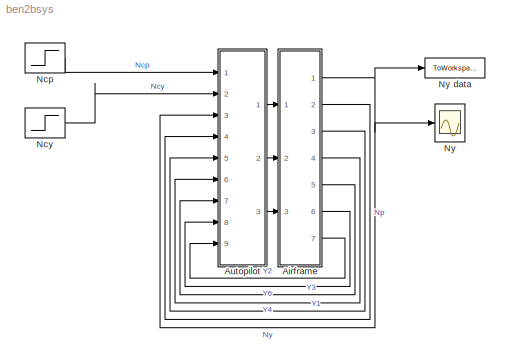
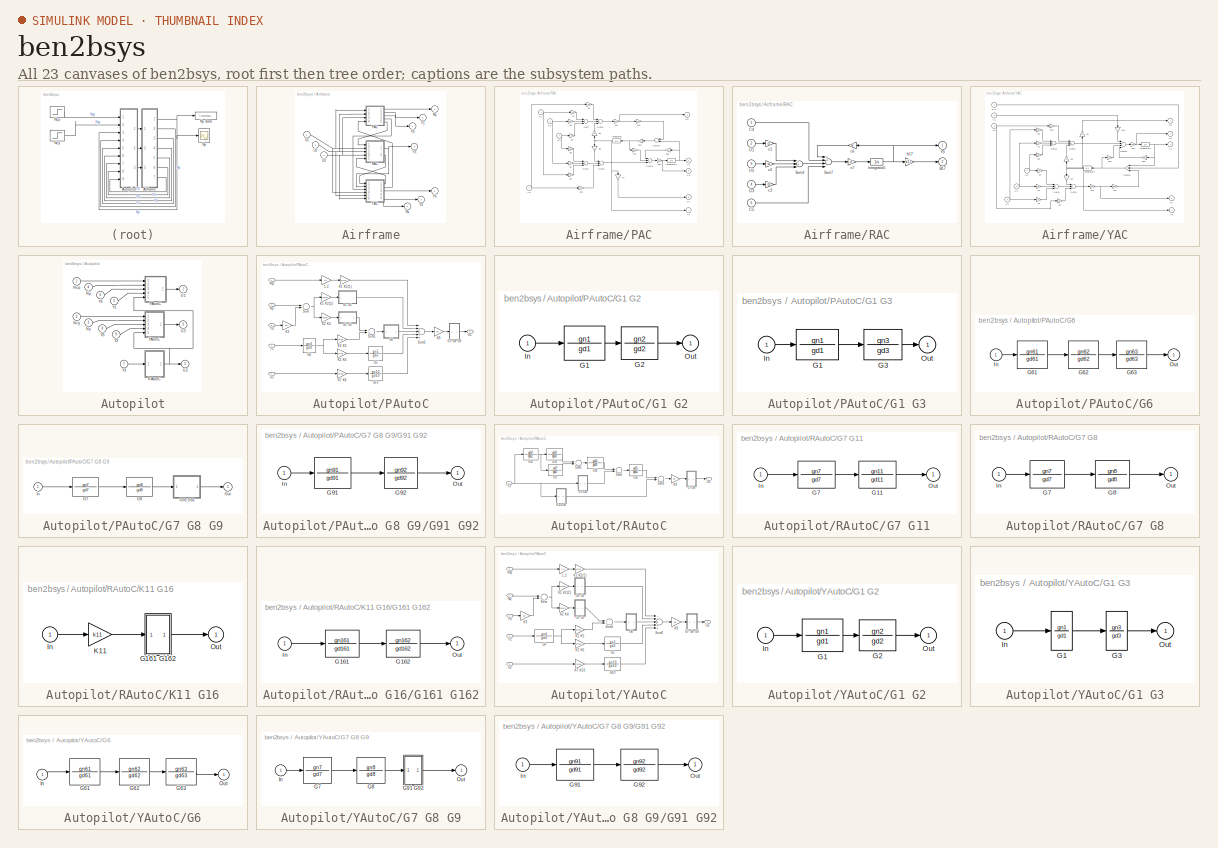
[diagram: thumbnail index - all 23 canvases of the model, root first then tree order]
MODEL ben2bsys
KIND model
CONFIG PreLoadFcn = ben2bdat
BLOCK [SubSystem] Airframe
  MinAlgLoopOccurrences = off
  Ports = [3, 7]
  PropExecContextAcrossSSBoundary = on
  RTWSystemCode = Auto
  TreatAsAtomicUnit = off
BLOCK [Outport] Airframe/Np
  IconDisplay = Port number
  InitialOutput = 0
  Port = 2
BLOCK [Outport] Airframe/Ny
  IconDisplay = Port number
  InitialOutput = 0
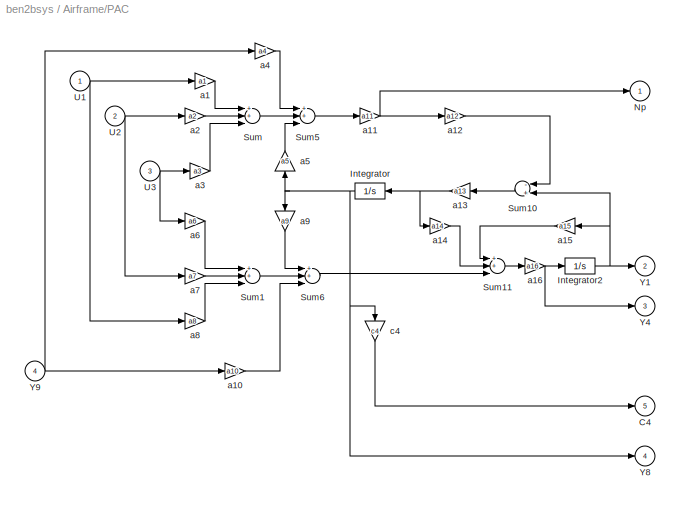
BLOCK [SubSystem] Airframe/PAC
  MinAlgLoopOccurrences = off
  Ports = [4, 5]
  PropExecContextAcrossSSBoundary = on
  RTWSystemCode = Auto
  TreatAsAtomicUnit = off
BLOCK [Outport] Airframe/PAC/C4
  IconDisplay = Port number
  InitialOutput = 0
  Port = 5
BLOCK [Integrator] Airframe/PAC/Integrator
  Ports = [1, 1]
BLOCK [Integrator] Airframe/PAC/Integrator2
  Ports = [1, 1]
BLOCK [Outport] Airframe/PAC/Np
  IconDisplay = Port number
  InitialOutput = 0
BLOCK [Sum] Airframe/PAC/Sum
  Inputs = 3
  Ports = [3, 1]
BLOCK [Sum] Airframe/PAC/Sum1
  Inputs = 3
  Ports = [3, 1]
BLOCK [Sum] Airframe/PAC/Sum10
  Inputs = -+
  Ports = [2, 1]
BLOCK [Sum] Airframe/PAC/Sum11
  Inputs = 3
  Ports = [3, 1]
BLOCK [Sum] Airframe/PAC/Sum5
  Inputs = 3
  Ports = [3, 1]
BLOCK [Sum] Airframe/PAC/Sum6
  Inputs = 3
  Ports = [3, 1]
BLOCK [Inport] Airframe/PAC/U1
  IconDisplay = Port number
  LatchInput = off
  Port = 1
BLOCK [Inport] Airframe/PAC/U2
  IconDisplay = Port number
  LatchInput = off
  Port = 2
BLOCK [Inport] Airframe/PAC/U3
  IconDisplay = Port number
  LatchInput = off
  Port = 3
BLOCK [Outport] Airframe/PAC/Y1
  IconDisplay = Port number
  InitialOutput = 0
  Port = 2
BLOCK [Outport] Airframe/PAC/Y4
  IconDisplay = Port number
  InitialOutput = 0
  Port = 3
BLOCK [Outport] Airframe/PAC/Y8
  IconDisplay = Port number
  InitialOutput = 0
  Port = 4
BLOCK [Inport] Airframe/PAC/Y9
  IconDisplay = Port number
  LatchInput = off
  Port = 4
BLOCK [Gain] Airframe/PAC/a1
  Gain = a1
BLOCK [Gain] Airframe/PAC/a10
  Gain = a10
BLOCK [Gain] Airframe/PAC/a11
  Gain = a11
BLOCK [Gain] Airframe/PAC/a12
  Gain = a12
BLOCK [Gain] Airframe/PAC/a13
  Gain = a13
BLOCK [Gain] Airframe/PAC/a14
  Gain = a14
BLOCK [Gain] Airframe/PAC/a15
  Gain = a15
BLOCK [Gain] Airframe/PAC/a16
  Gain = a16
BLOCK [Gain] Airframe/PAC/a2
  Gain = a2
BLOCK [Gain] Airframe/PAC/a3
  Gain = a3
BLOCK [Gain] Airframe/PAC/a4
  Gain = a4
BLOCK [Gain] Airframe/PAC/a5
  Gain = a5
BLOCK [Gain] Airframe/PAC/a6
  Gain = a6
BLOCK [Gain] Airframe/PAC/a7
  Gain = a7
BLOCK [Gain] Airframe/PAC/a8
  Gain = a8
BLOCK [Gain] Airframe/PAC/a9
  Gain = a9
BLOCK [Gain] Airframe/PAC/c4
  Gain = c4
BLOCK [SubSystem] Airframe/RAC
  MinAlgLoopOccurrences = off
  Ports = [5, 2]
  PropExecContextAcrossSSBoundary = on
  RTWSystemCode = Auto
  TreatAsAtomicUnit = off
BLOCK [Outport] Airframe/RAC/B17
  IconDisplay = Port number
  InitialOutput = 0
  Port = 2
BLOCK [Inport] Airframe/RAC/C4
  IconDisplay = Port number
  LatchInput = off
  Port = 1
BLOCK [Inport] Airframe/RAC/C5
  IconDisplay = Port number
  LatchInput = off
  Port = 5
BLOCK [Integrator] Airframe/RAC/Integrator5
  Ports = [1, 1]
BLOCK [Sum] Airframe/RAC/Sum2
  Inputs = 3
  Ports = [3, 1]
BLOCK [Sum] Airframe/RAC/Sum7
  Inputs = 4
  Ports = [4, 1]
BLOCK [Inport] Airframe/RAC/U1
  IconDisplay = Port number
  LatchInput = off
  Port = 2
BLOCK [Inport] Airframe/RAC/U2
  IconDisplay = Port number
  LatchInput = off
  Port = 3
BLOCK [Inport] Airframe/RAC/U3
  IconDisplay = Port number
  LatchInput = off
  Port = 4
BLOCK [Outport] Airframe/RAC/Y3
  IconDisplay = Port number
  InitialOutput = 0
BLOCK [Gain] Airframe/RAC/b17
  Gain = b17
BLOCK [Gain] Airframe/RAC/c1
  Gain = c1
BLOCK [Gain] Airframe/RAC/c2
  Gain = c2
BLOCK [Gain] Airframe/RAC/c3
  Gain = c3
BLOCK [Gain] Airframe/RAC/c6
  Gain = c6
BLOCK [Gain] Airframe/RAC/c7
  Gain = c7
BLOCK [Inport] Airframe/U1
  IconDisplay = Port number
  LatchInput = off
  Port = 1
BLOCK [Inport] Airframe/U2
  IconDisplay = Port number
  LatchInput = off
  Port = 2
BLOCK [Inport] Airframe/U3
  IconDisplay = Port number
  LatchInput = off
  Port = 3
BLOCK [Outport] Airframe/Y1
  IconDisplay = Port number
  InitialOutput = 0
  Port = 3
BLOCK [Outport] Airframe/Y2
  IconDisplay = Port number
  InitialOutput = 0
  Port = 7
BLOCK [Outport] Airframe/Y3
  IconDisplay = Port number
  InitialOutput = 0
  Port = 5
BLOCK [Outport] Airframe/Y4
  IconDisplay = Port number
  InitialOutput = 0
  Port = 4
BLOCK [Outport] Airframe/Y6
  IconDisplay = Port number
  InitialOutput = 0
  Port = 6
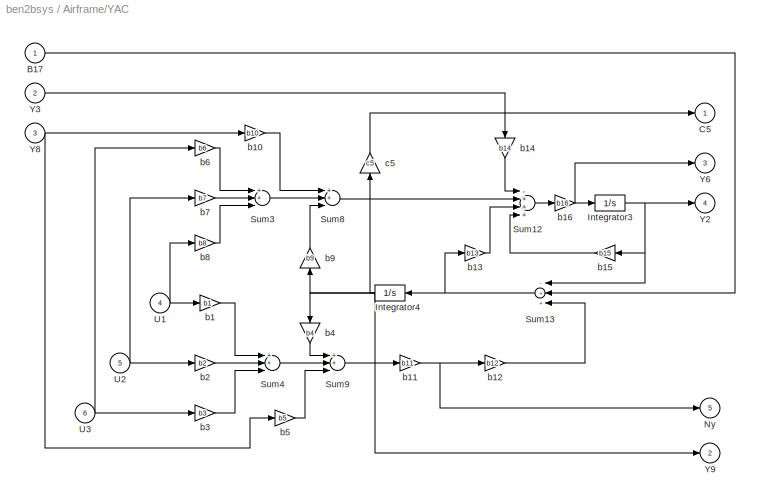
BLOCK [SubSystem] Airframe/YAC
  MinAlgLoopOccurrences = off
  Ports = [6, 5]
  PropExecContextAcrossSSBoundary = on
  RTWSystemCode = Auto
  TreatAsAtomicUnit = off
BLOCK [Inport] Airframe/YAC/B17
  IconDisplay = Port number
  LatchInput = off
  Port = 1
BLOCK [Outport] Airframe/YAC/C5
  IconDisplay = Port number
  InitialOutput = 0
BLOCK [Integrator] Airframe/YAC/Integrator3
  Ports = [1, 1]
BLOCK [Integrator] Airframe/YAC/Integrator4
  Ports = [1, 1]
BLOCK [Outport] Airframe/YAC/Ny
  IconDisplay = Port number
  InitialOutput = 0
  Port = 5
BLOCK [Sum] Airframe/YAC/Sum12
  Inputs = -+++
  Ports = [4, 1]
BLOCK [Sum] Airframe/YAC/Sum13
  Inputs = -++
  Ports = [3, 1]
BLOCK [Sum] Airframe/YAC/Sum3
  Inputs = 3
  Ports = [3, 1]
BLOCK [Sum] Airframe/YAC/Sum4
  Inputs = 3
  Ports = [3, 1]
BLOCK [Sum] Airframe/YAC/Sum8
  Inputs = 3
  Ports = [3, 1]
BLOCK [Sum] Airframe/YAC/Sum9
  Inputs = 3
  Ports = [3, 1]
BLOCK [Inport] Airframe/YAC/U1
  IconDisplay = Port number
  LatchInput = off
  Port = 4
BLOCK [Inport] Airframe/YAC/U2
  IconDisplay = Port number
  LatchInput = off
  Port = 5
BLOCK [Inport] Airframe/YAC/U3
  IconDisplay = Port number
  LatchInput = off
  Port = 6
BLOCK [Outport] Airframe/YAC/Y2
  IconDisplay = Port number
  InitialOutput = 0
  Port = 4
BLOCK [Inport] Airframe/YAC/Y3
  IconDisplay = Port number
  LatchInput = off
  Port = 2
BLOCK [Outport] Airframe/YAC/Y6
  IconDisplay = Port number
  InitialOutput = 0
  Port = 3
BLOCK [Inport] Airframe/YAC/Y8
  IconDisplay = Port number
  LatchInput = off
  Port = 3
BLOCK [Outport] Airframe/YAC/Y9
  IconDisplay = Port number
  InitialOutput = 0
  Port = 2
BLOCK [Gain] Airframe/YAC/b1
  Gain = b1
BLOCK [Gain] Airframe/YAC/b10
  Gain = b10
BLOCK [Gain] Airframe/YAC/b11
  Gain = b11
BLOCK [Gain] Airframe/YAC/b12
  Gain = b12
BLOCK [Gain] Airframe/YAC/b13
  Gain = b13
BLOCK [Gain] Airframe/YAC/b14
  Gain = b14
BLOCK [Gain] Airframe/YAC/b15
  Gain = b15
BLOCK [Gain] Airframe/YAC/b16
  Gain = b16
BLOCK [Gain] Airframe/YAC/b2
  Gain = b2
BLOCK [Gain] Airframe/YAC/b3
  Gain = b3
BLOCK [Gain] Airframe/YAC/b4
  Gain = b4
BLOCK [Gain] Airframe/YAC/b5
  Gain = b5
BLOCK [Gain] Airframe/YAC/b6
  Gain = b6
BLOCK [Gain] Airframe/YAC/b7
  Gain = b7
BLOCK [Gain] Airframe/YAC/b8
  Gain = b8
BLOCK [Gain] Airframe/YAC/b9
  Gain = b9
BLOCK [Gain] Airframe/YAC/c5
  Gain = c5
BLOCK [SubSystem] Autopilot
  MinAlgLoopOccurrences = off
  Ports = [9, 3]
  PropExecContextAcrossSSBoundary = on
  RTWSystemCode = Auto
  TreatAsAtomicUnit = off
BLOCK [Inport] Autopilot/Ncp
  IconDisplay = Port number
  LatchInput = off
  Port = 1
BLOCK [Inport] Autopilot/Ncy
  IconDisplay = Port number
  LatchInput = off
  Port = 2
BLOCK [Inport] Autopilot/Np
  IconDisplay = Port number
  LatchInput = off
  Port = 4
BLOCK [Inport] Autopilot/Ny
  IconDisplay = Port number
  LatchInput = off
  Port = 3
BLOCK [SubSystem] Autopilot/PAutoC
  MinAlgLoopOccurrences = off
  Ports = [5, 1]
  PropExecContextAcrossSSBoundary = on
  RTWSystemCode = Auto
  TreatAsAtomicUnit = off
BLOCK [Gain] Autopilot/PAutoC/1.2
  Gain = 1.2
BLOCK [SubSystem] Autopilot/PAutoC/G1 G2
  MinAlgLoopOccurrences = off
  Ports = [1, 1]
  PropExecContextAcrossSSBoundary = on
  RTWSystemCode = Auto
  TreatAsAtomicUnit = off
BLOCK [TransferFcn] Autopilot/PAutoC/G1 G2/G1
  Denominator = gd1
  Numerator = gn1
BLOCK [TransferFcn] Autopilot/PAutoC/G1 G2/G2
  Denominator = gd2
  Numerator = gn2
BLOCK [Inport] Autopilot/PAutoC/G1 G2/In
  IconDisplay = Port number
  LatchInput = off
  Port = 1
BLOCK [Outport] Autopilot/PAutoC/G1 G2/Out
  IconDisplay = Port number
  InitialOutput = 0
BLOCK [SubSystem] Autopilot/PAutoC/G1 G3
  MinAlgLoopOccurrences = off
  Ports = [1, 1]
  PropExecContextAcrossSSBoundary = on
  RTWSystemCode = Auto
  TreatAsAtomicUnit = off
BLOCK [TransferFcn] Autopilot/PAutoC/G1 G3/G1
  Denominator = gd1
  Numerator = gn1
BLOCK [TransferFcn] Autopilot/PAutoC/G1 G3/G3
  Denominator = gd3
  Numerator = gn3
BLOCK [Inport] Autopilot/PAutoC/G1 G3/In
  IconDisplay = Port number
  LatchInput = off
  Port = 1
BLOCK [Outport] Autopilot/PAutoC/G1 G3/Out
  IconDisplay = Port number
  InitialOutput = 0
BLOCK [TransferFcn] Autopilot/PAutoC/G10
  Denominator = gd10
  Numerator = gn10
BLOCK [TransferFcn] Autopilot/PAutoC/G4
  Denominator = gd4
  Numerator = gn4
BLOCK [TransferFcn] Autopilot/PAutoC/G5
  Denominator = gd5
  Numerator = gn5
BLOCK [SubSystem] Autopilot/PAutoC/G6
  MinAlgLoopOccurrences = off
  Ports = [1, 1]
  PropExecContextAcrossSSBoundary = on
  RTWSystemCode = Auto
  TreatAsAtomicUnit = off
BLOCK [TransferFcn] Autopilot/PAutoC/G6/G61
  Denominator = gd61
  Numerator = gn61
BLOCK [TransferFcn] Autopilot/PAutoC/G6/G62
  Denominator = gd62
  Numerator = gn62
BLOCK [TransferFcn] Autopilot/PAutoC/G6/G63
  Denominator = gd63
  Numerator = gn63
BLOCK [Inport] Autopilot/PAutoC/G6/In
  IconDisplay = Port number
  LatchInput = off
  Port = 1
BLOCK [Outport] Autopilot/PAutoC/G6/Out
  IconDisplay = Port number
  InitialOutput = 0
BLOCK [SubSystem] Autopilot/PAutoC/G7 G8 G9
  MinAlgLoopOccurrences = off
  Ports = [1, 1]
  PropExecContextAcrossSSBoundary = on
  RTWSystemCode = Auto
  TreatAsAtomicUnit = off
BLOCK [TransferFcn] Autopilot/PAutoC/G7 G8 G9/G7
  Denominator = gd7
  Numerator = gn7
BLOCK [TransferFcn] Autopilot/PAutoC/G7 G8 G9/G8
  Denominator = gd8
  Numerator = gn8
BLOCK [SubSystem] Autopilot/PAutoC/G7 G8 G9/G91 G92
  MinAlgLoopOccurrences = off
  Ports = [1, 1]
  PropExecContextAcrossSSBoundary = on
  RTWSystemCode = Auto
  TreatAsAtomicUnit = off
BLOCK [TransferFcn] Autopilot/PAutoC/G7 G8 G9/G91 G92/G91
  Denominator = gd91
  Numerator = gn91
BLOCK [TransferFcn] Autopilot/PAutoC/G7 G8 G9/G91 G92/G92
  Denominator = gd92
  Numerator = gn92
BLOCK [Inport] Autopilot/PAutoC/G7 G8 G9/G91 G92/In
  IconDisplay = Port number
  LatchInput = off
  Port = 1
BLOCK [Outport] Autopilot/PAutoC/G7 G8 G9/G91 G92/Out
  IconDisplay = Port number
  InitialOutput = 0
BLOCK [Inport] Autopilot/PAutoC/G7 G8 G9/In
  IconDisplay = Port number
  LatchInput = off
  Port = 1
BLOCK [Outport] Autopilot/PAutoC/G7 G8 G9/Out
  IconDisplay = Port number
  InitialOutput = 0
BLOCK [Gain] Autopilot/PAutoC/K1 K2(1)
  Gain = k1*k2
BLOCK [Gain] Autopilot/PAutoC/K1 K2(2)
  Gain = k1*k2
BLOCK [Gain] Autopilot/PAutoC/K2 K4
  Gain = k2*k4
BLOCK [Gain] Autopilot/PAutoC/K2 K5
  Gain = k2*k5
BLOCK [Gain] Autopilot/PAutoC/K2 K6
  Gain = k2*k6
BLOCK [Gain] Autopilot/PAutoC/K3
  Gain = k3
BLOCK [Gain] Autopilot/PAutoC/K7 K8
  Gain = k7*k8
BLOCK [Gain] Autopilot/PAutoC/K9
  Gain = k9
BLOCK [Inport] Autopilot/PAutoC/Ncp
  IconDisplay = Port number
  LatchInput = off
  Port = 1
BLOCK [Inport] Autopilot/PAutoC/Np
  IconDisplay = Port number
  LatchInput = off
  Port = 2
BLOCK [Sum] Autopilot/PAutoC/Sum
  Inputs = 2
  Ports = [2, 1]
BLOCK [Sum] Autopilot/PAutoC/Sum1
  Inputs = 2
  Ports = [2, 1]
BLOCK [Sum] Autopilot/PAutoC/Sum2
  Inputs = -++++
  Ports = [5, 1]
BLOCK [Outport] Autopilot/PAutoC/U1
  IconDisplay = Port number
  InitialOutput = 0
BLOCK [Inport] Autopilot/PAutoC/U2
  IconDisplay = Port number
  LatchInput = off
  Port = 5
BLOCK [Inport] Autopilot/PAutoC/Y1
  IconDisplay = Port number
  LatchInput = off
  Port = 4
BLOCK [Inport] Autopilot/PAutoC/Y4
  IconDisplay = Port number
  LatchInput = off
  Port = 3
BLOCK [SubSystem] Autopilot/RAutoC
  MinAlgLoopOccurrences = off
  Ports = [1, 1]
  PropExecContextAcrossSSBoundary = on
  RTWSystemCode = Auto
  TreatAsAtomicUnit = off
BLOCK [TransferFcn] Autopilot/RAutoC/G12
  Denominator = gd12
  Numerator = gn12
BLOCK [TransferFcn] Autopilot/RAutoC/G13
  Denominator = gd13
  Numerator = gn13
BLOCK [TransferFcn] Autopilot/RAutoC/G14
  Denominator = gd14
  Numerator = gn14
BLOCK [TransferFcn] Autopilot/RAutoC/G15
  Denominator = gd15
  Numerator = gn15
BLOCK [TransferFcn] Autopilot/RAutoC/G17
  Denominator = gd17
  Numerator = gn17
BLOCK [SubSystem] Autopilot/RAutoC/G7 G11
  MinAlgLoopOccurrences = off
  Ports = [1, 1]
  PropExecContextAcrossSSBoundary = on
  RTWSystemCode = Auto
  TreatAsAtomicUnit = off
BLOCK [TransferFcn] Autopilot/RAutoC/G7 G11/G11
  Denominator = gd11
  Numerator = gn11
BLOCK [TransferFcn] Autopilot/RAutoC/G7 G11/G7
  Denominator = gd7
  Numerator = gn7
BLOCK [Inport] Autopilot/RAutoC/G7 G11/In
  IconDisplay = Port number
  LatchInput = off
  Port = 1
BLOCK [Outport] Autopilot/RAutoC/G7 G11/Out
  IconDisplay = Port number
  InitialOutput = 0
BLOCK [SubSystem] Autopilot/RAutoC/G7 G8
  MinAlgLoopOccurrences = off
  Ports = [1, 1]
  PropExecContextAcrossSSBoundary = on
  RTWSystemCode = Auto
  TreatAsAtomicUnit = off
BLOCK [TransferFcn] Autopilot/RAutoC/G7 G8/G7
  Denominator = gd7
  Numerator = gn7
BLOCK [TransferFcn] Autopilot/RAutoC/G7 G8/G8
  Denominator = gd8
  Numerator = gn8
BLOCK [Inport] Autopilot/RAutoC/G7 G8/In
  IconDisplay = Port number
  LatchInput = off
  Port = 1
BLOCK [Outport] Autopilot/RAutoC/G7 G8/Out
  IconDisplay = Port number
  InitialOutput = 0
BLOCK [SubSystem] Autopilot/RAutoC/K11 G16
  MinAlgLoopOccurrences = off
  Ports = [1, 1]
  PropExecContextAcrossSSBoundary = on
  RTWSystemCode = Auto
  TreatAsAtomicUnit = off
BLOCK [SubSystem] Autopilot/RAutoC/K11 G16/G161 G162
  MinAlgLoopOccurrences = off
  Ports = [1, 1]
  PropExecContextAcrossSSBoundary = on
  RTWSystemCode = Auto
  TreatAsAtomicUnit = off
BLOCK [TransferFcn] Autopilot/RAutoC/K11 G16/G161 G162/G161
  Denominator = gd161
  Numerator = gn161
BLOCK [TransferFcn] Autopilot/RAutoC/K11 G16/G161 G162/G162
  Denominator = gd162
  Numerator = gn162
BLOCK [Inport] Autopilot/RAutoC/K11 G16/G161 G162/In
  IconDisplay = Port number
  LatchInput = off
  Port = 1
BLOCK [Outport] Autopilot/RAutoC/K11 G16/G161 G162/Out
  IconDisplay = Port number
  InitialOutput = 0
BLOCK [Inport] Autopilot/RAutoC/K11 G16/In
  IconDisplay = Port number
  LatchInput = off
  Port = 1
BLOCK [Gain] Autopilot/RAutoC/K11 G16/K11
  Gain = k11
BLOCK [Outport] Autopilot/RAutoC/K11 G16/Out
  IconDisplay = Port number
  InitialOutput = 0
BLOCK [Gain] Autopilot/RAutoC/K9
  Gain = k9
BLOCK [Sum] Autopilot/RAutoC/Sum1
  Inputs = --
  Ports = [2, 1]
BLOCK [Sum] Autopilot/RAutoC/Sum2
  Inputs = 2
  Ports = [2, 1]
BLOCK [Sum] Autopilot/RAutoC/Sum3
  Inputs = +-
  Ports = [2, 1]
BLOCK [Outport] Autopilot/RAutoC/U2
  IconDisplay = Port number
  InitialOutput = 0
BLOCK [Inport] Autopilot/RAutoC/Y3
  IconDisplay = Port number
  LatchInput = off
  Port = 1
BLOCK [Outport] Autopilot/U1
  IconDisplay = Port number
  InitialOutput = 0
BLOCK [Outport] Autopilot/U2
  IconDisplay = Port number
  InitialOutput = 0
  Port = 2
BLOCK [Outport] Autopilot/U3
  IconDisplay = Port number
  InitialOutput = 0
  Port = 3
BLOCK [Inport] Autopilot/Y1
  IconDisplay = Port number
  LatchInput = off
  Port = 5
BLOCK [Inport] Autopilot/Y2
  IconDisplay = Port number
  LatchInput = off
  Port = 9
BLOCK [Inport] Autopilot/Y3
  IconDisplay = Port number
  LatchInput = off
  Port = 7
BLOCK [Inport] Autopilot/Y4
  IconDisplay = Port number
  LatchInput = off
  Port = 6
BLOCK [Inport] Autopilot/Y6
  IconDisplay = Port number
  LatchInput = off
  Port = 8
BLOCK [SubSystem] Autopilot/YAutoC
  MinAlgLoopOccurrences = off
  Ports = [5, 1]
  PropExecContextAcrossSSBoundary = on
  RTWSystemCode = Auto
  TreatAsAtomicUnit = off
BLOCK [Gain] Autopilot/YAutoC/1.2
  Gain = 1.2
BLOCK [SubSystem] Autopilot/YAutoC/G1 G2
  MinAlgLoopOccurrences = off
  Ports = [1, 1]
  PropExecContextAcrossSSBoundary = on
  RTWSystemCode = Auto
  TreatAsAtomicUnit = off
BLOCK [TransferFcn] Autopilot/YAutoC/G1 G2/G1
  Denominator = gd1
  Numerator = gn1
BLOCK [TransferFcn] Autopilot/YAutoC/G1 G2/G2
  Denominator = gd2
  Numerator = gn2
BLOCK [Inport] Autopilot/YAutoC/G1 G2/In
  IconDisplay = Port number
  LatchInput = off
  Port = 1
BLOCK [Outport] Autopilot/YAutoC/G1 G2/Out
  IconDisplay = Port number
  InitialOutput = 0
BLOCK [SubSystem] Autopilot/YAutoC/G1 G3
  MinAlgLoopOccurrences = off
  Ports = [1, 1]
  PropExecContextAcrossSSBoundary = on
  RTWSystemCode = Auto
  TreatAsAtomicUnit = off
BLOCK [TransferFcn] Autopilot/YAutoC/G1 G3/G1
  Denominator = gd1
  Numerator = gn1
BLOCK [TransferFcn] Autopilot/YAutoC/G1 G3/G3
  Denominator = gd3
  Numerator = gn3
BLOCK [Inport] Autopilot/YAutoC/G1 G3/In
  IconDisplay = Port number
  LatchInput = off
  Port = 1
BLOCK [Outport] Autopilot/YAutoC/G1 G3/Out
  IconDisplay = Port number
  InitialOutput = 0
BLOCK [TransferFcn] Autopilot/YAutoC/G10
  Denominator = gd10
  Numerator = gn10
BLOCK [TransferFcn] Autopilot/YAutoC/G4
  Denominator = gd4
  Numerator = gn4
BLOCK [TransferFcn] Autopilot/YAutoC/G5
  Denominator = gd5
  Numerator = gn5
BLOCK [SubSystem] Autopilot/YAutoC/G6
  MinAlgLoopOccurrences = off
  Ports = [1, 1]
  PropExecContextAcrossSSBoundary = on
  RTWSystemCode = Auto
  TreatAsAtomicUnit = off
BLOCK [TransferFcn] Autopilot/YAutoC/G6/G61
  Denominator = gd61
  Numerator = gn61
BLOCK [TransferFcn] Autopilot/YAutoC/G6/G62
  Denominator = gd62
  Numerator = gn62
BLOCK [TransferFcn] Autopilot/YAutoC/G6/G63
  Denominator = gd63
  Numerator = gn63
BLOCK [Inport] Autopilot/YAutoC/G6/In
  IconDisplay = Port number
  LatchInput = off
  Port = 1
BLOCK [Outport] Autopilot/YAutoC/G6/Out
  IconDisplay = Port number
  InitialOutput = 0
BLOCK [SubSystem] Autopilot/YAutoC/G7 G8 G9
  MinAlgLoopOccurrences = off
  Ports = [1, 1]
  PropExecContextAcrossSSBoundary = on
  RTWSystemCode = Auto
  TreatAsAtomicUnit = off
BLOCK [TransferFcn] Autopilot/YAutoC/G7 G8 G9/G7
  Denominator = gd7
  Numerator = gn7
BLOCK [TransferFcn] Autopilot/YAutoC/G7 G8 G9/G8
  Denominator = gd8
  Numerator = gn8
BLOCK [SubSystem] Autopilot/YAutoC/G7 G8 G9/G91 G92
  MinAlgLoopOccurrences = off
  Ports = [1, 1]
  PropExecContextAcrossSSBoundary = on
  RTWSystemCode = Auto
  TreatAsAtomicUnit = off
BLOCK [TransferFcn] Autopilot/YAutoC/G7 G8 G9/G91 G92/G91
  Denominator = gd91
  Numerator = gn91
BLOCK [TransferFcn] Autopilot/YAutoC/G7 G8 G9/G91 G92/G92
  Denominator = gd92
  Numerator = gn92
BLOCK [Inport] Autopilot/YAutoC/G7 G8 G9/G91 G92/In
  IconDisplay = Port number
  LatchInput = off
  Port = 1
BLOCK [Outport] Autopilot/YAutoC/G7 G8 G9/G91 G92/Out
  IconDisplay = Port number
  InitialOutput = 0
BLOCK [Inport] Autopilot/YAutoC/G7 G8 G9/In
  IconDisplay = Port number
  LatchInput = off
  Port = 1
BLOCK [Outport] Autopilot/YAutoC/G7 G8 G9/Out
  IconDisplay = Port number
  InitialOutput = 0
BLOCK [Gain] Autopilot/YAutoC/K1 K2(1)
  Gain = k1*k2
BLOCK [Gain] Autopilot/YAutoC/K1 K2(2)
  Gain = k1*k2
BLOCK [Gain] Autopilot/YAutoC/K2 K4
  Gain = k2*k4
BLOCK [Gain] Autopilot/YAutoC/K2 K5
  Gain = k2*k5
BLOCK [Gain] Autopilot/YAutoC/K2 K6
  Gain = k2*k6
BLOCK [Gain] Autopilot/YAutoC/K3
  Gain = k3
BLOCK [Gain] Autopilot/YAutoC/K7 K10
  Gain = k7*k10
BLOCK [Gain] Autopilot/YAutoC/K9
  Gain = k9
BLOCK [Inport] Autopilot/YAutoC/Ncy
  IconDisplay = Port number
  LatchInput = off
  Port = 1
BLOCK [Inport] Autopilot/YAutoC/Ny
  IconDisplay = Port number
  LatchInput = off
  Port = 2
BLOCK [Sum] Autopilot/YAutoC/Sum
  Inputs = 2
  Ports = [2, 1]
BLOCK [Sum] Autopilot/YAutoC/Sum1
  Inputs = 2
  Ports = [2, 1]
BLOCK [Sum] Autopilot/YAutoC/Sum2
  Inputs = -++++
  Ports = [5, 1]
BLOCK [Inport] Autopilot/YAutoC/U2
  IconDisplay = Port number
  LatchInput = off
  Port = 5
BLOCK [Outport] Autopilot/YAutoC/U3
  IconDisplay = Port number
  InitialOutput = 0
BLOCK [Inport] Autopilot/YAutoC/Y2
  IconDisplay = Port number
  LatchInput = off
  Port = 4
BLOCK [Inport] Autopilot/YAutoC/Y6
  IconDisplay = Port number
  LatchInput = off
  Port = 3
BLOCK [Step] Ncp
  After = 0
  SampleTime = 0
  Time = 0
BLOCK [Step] Ncy
  SampleTime = 0
  Time = 0
BLOCK [Scope] Ny
  DataFormat = Array
  NumInputPorts = 1
  Ports = [1]
  TickLabels = on
  TimeRange = 4
  YMax = 1.2
  YMin = -0.2
BLOCK [ToWorkspace] Ny data
  SampleTime = -1
  SaveFormat = Array
  VariableName = Ny_data
NET Airframe/PAC/Integrator2:1 -> Airframe/PAC/Sum10:2, Airframe/PAC/Y1:1, Airframe/PAC/a15:1
NET Airframe/PAC/Integrator:1 -> Airframe/PAC/Y8:1, Airframe/PAC/a5:1, Airframe/PAC/a9:1, Airframe/PAC/c4:1
LINE Airframe/PAC/Sum10:1 -> Airframe/PAC/a13:1
LINE Airframe/PAC/Sum11:1 -> Airframe/PAC/a16:1
LINE Airframe/PAC/Sum1:1 -> Airframe/PAC/Sum6:2
LINE Airframe/PAC/Sum5:1 -> Airframe/PAC/a11:1
LINE Airframe/PAC/Sum6:1 -> Airframe/PAC/Sum11:3
LINE Airframe/PAC/Sum:1 -> Airframe/PAC/Sum5:2
NET Airframe/PAC/U1:1 -> Airframe/PAC/a1:1, Airframe/PAC/a8:1
NET Airframe/PAC/U2:1 -> Airframe/PAC/a2:1, Airframe/PAC/a7:1
NET Airframe/PAC/U3:1 -> Airframe/PAC/a3:1, Airframe/PAC/a6:1
NET Airframe/PAC/Y9:1 -> Airframe/PAC/a10:1, Airframe/PAC/a4:1
LINE Airframe/PAC/a10:1 -> Airframe/PAC/Sum6:3
NET Airframe/PAC/a11:1 -> Airframe/PAC/Np:1, Airframe/PAC/a12:1
LINE Airframe/PAC/a12:1 -> Airframe/PAC/Sum10:1
NET Airframe/PAC/a13:1 -> Airframe/PAC/Integrator:1, Airframe/PAC/a14:1
LINE Airframe/PAC/a14:1 -> Airframe/PAC/Sum11:2
LINE Airframe/PAC/a15:1 -> Airframe/PAC/Sum11:1
NET Airframe/PAC/a16:1 -> Airframe/PAC/Integrator2:1, Airframe/PAC/Y4:1
LINE Airframe/PAC/a1:1 -> Airframe/PAC/Sum:1
LINE Airframe/PAC/a2:1 -> Airframe/PAC/Sum:2
LINE Airframe/PAC/a3:1 -> Airframe/PAC/Sum:3
LINE Airframe/PAC/a4:1 -> Airframe/PAC/Sum5:1
LINE Airframe/PAC/a5:1 -> Airframe/PAC/Sum5:3
LINE Airframe/PAC/a6:1 -> Airframe/PAC/Sum1:1
LINE Airframe/PAC/a7:1 -> Airframe/PAC/Sum1:2
LINE Airframe/PAC/a8:1 -> Airframe/PAC/Sum1:3
LINE Airframe/PAC/a9:1 -> Airframe/PAC/Sum6:1
LINE Airframe/PAC/c4:1 -> Airframe/PAC/C4:1
LINE Airframe/PAC:1 -> Airframe/Np:1
LINE Airframe/PAC:2 -> Airframe/Y1:1
LINE Airframe/PAC:3 -> Airframe/Y4:1
LINE Airframe/PAC:4 -> Airframe/YAC:3
LINE Airframe/PAC:5 -> Airframe/RAC:1
LINE Airframe/RAC/C4:1 -> Airframe/RAC/Sum7:2
LINE Airframe/RAC/C5:1 -> Airframe/RAC/Sum7:4
NET Airframe/RAC/Integrator5:1 -> Airframe/RAC/Y3:1, Airframe/RAC/b17:1, Airframe/RAC/c6:1
LINE Airframe/RAC/Sum2:1 -> Airframe/RAC/Sum7:3
LINE Airframe/RAC/Sum7:1 -> Airframe/RAC/c7:1
LINE Airframe/RAC/U1:1 -> Airframe/RAC/c1:1
LINE Airframe/RAC/U2:1 -> Airframe/RAC/c2:1
LINE Airframe/RAC/U3:1 -> Airframe/RAC/c3:1
LINE Airframe/RAC/b17:1 -> Airframe/RAC/B17:1
LINE Airframe/RAC/c1:1 -> Airframe/RAC/Sum2:1
LINE Airframe/RAC/c2:1 -> Airframe/RAC/Sum2:2
LINE Airframe/RAC/c3:1 -> Airframe/RAC/Sum2:3
LINE Airframe/RAC/c6:1 -> Airframe/RAC/Sum7:1
LINE Airframe/RAC/c7:1 -> Airframe/RAC/Integrator5:1
NET Airframe/RAC:1 -> Airframe/Y3:1, Airframe/YAC:2
LINE Airframe/RAC:2 -> Airframe/YAC:1
NET Airframe/U1:1 -> Airframe/PAC:1, Airframe/RAC:2, Airframe/YAC:4
NET Airframe/U2:1 -> Airframe/PAC:2, Airframe/RAC:3, Airframe/YAC:5
NET Airframe/U3:1 -> Airframe/PAC:3, Airframe/RAC:4, Airframe/YAC:6
LINE Airframe/YAC/B17:1 -> Airframe/YAC/Sum13:2
NET Airframe/YAC/Integrator3:1 -> Airframe/YAC/Sum13:1, Airframe/YAC/Y2:1, Airframe/YAC/b15:1
NET Airframe/YAC/Integrator4:1 -> Airframe/YAC/Y9:1, Airframe/YAC/b4:1, Airframe/YAC/b9:1, Airframe/YAC/c5:1
LINE Airframe/YAC/Sum12:1 -> Airframe/YAC/b16:1
NET Airframe/YAC/Sum13:1 -> Airframe/YAC/Integrator4:1, Airframe/YAC/b13:1
LINE Airframe/YAC/Sum3:1 -> Airframe/YAC/Sum8:2
LINE Airframe/YAC/Sum4:1 -> Airframe/YAC/Sum9:2
LINE Airframe/YAC/Sum8:1 -> Airframe/YAC/Sum12:2
LINE Airframe/YAC/Sum9:1 -> Airframe/YAC/b11:1
NET Airframe/YAC/U1:1 -> Airframe/YAC/b1:1, Airframe/YAC/b8:1
NET Airframe/YAC/U2:1 -> Airframe/YAC/b2:1, Airframe/YAC/b7:1
NET Airframe/YAC/U3:1 -> Airframe/YAC/b3:1, Airframe/YAC/b6:1
LINE Airframe/YAC/Y3:1 -> Airframe/YAC/b14:1
NET Airframe/YAC/Y8:1 -> Airframe/YAC/b10:1, Airframe/YAC/b5:1
LINE Airframe/YAC/b10:1 -> Airframe/YAC/Sum8:1
NET Airframe/YAC/b11:1 -> Airframe/YAC/Ny:1, Airframe/YAC/b12:1
LINE Airframe/YAC/b12:1 -> Airframe/YAC/Sum13:3
LINE Airframe/YAC/b13:1 -> Airframe/YAC/Sum12:3
LINE Airframe/YAC/b14:1 -> Airframe/YAC/Sum12:1
LINE Airframe/YAC/b15:1 -> Airframe/YAC/Sum12:4
NET Airframe/YAC/b16:1 -> Airframe/YAC/Integrator3:1, Airframe/YAC/Y6:1
LINE Airframe/YAC/b1:1 -> Airframe/YAC/Sum4:1
LINE Airframe/YAC/b2:1 -> Airframe/YAC/Sum4:2
LINE Airframe/YAC/b3:1 -> Airframe/YAC/Sum4:3
LINE Airframe/YAC/b4:1 -> Airframe/YAC/Sum9:1
LINE Airframe/YAC/b5:1 -> Airframe/YAC/Sum9:3
LINE Airframe/YAC/b6:1 -> Airframe/YAC/Sum3:1
LINE Airframe/YAC/b7:1 -> Airframe/YAC/Sum3:2
LINE Airframe/YAC/b8:1 -> Airframe/YAC/Sum3:3
LINE Airframe/YAC/b9:1 -> Airframe/YAC/Sum8:3
LINE Airframe/YAC/c5:1 -> Airframe/YAC/C5:1
LINE Airframe/YAC:1 -> Airframe/RAC:5
LINE Airframe/YAC:2 -> Airframe/PAC:4
LINE Airframe/YAC:3 -> Airframe/Y6:1
LINE Airframe/YAC:4 -> Airframe/Y2:1
LINE Airframe/YAC:5 -> Airframe/Ny:1
NET Airframe:1 -> Autopilot:3, Ny data:1, Ny:1
LINE Airframe:2 -> Autopilot:4
LINE Airframe:3 -> Autopilot:5
LINE Airframe:4 -> Autopilot:6
LINE Airframe:5 -> Autopilot:7
LINE Airframe:6 -> Autopilot:8
LINE Airframe:7 -> Autopilot:9
LINE Autopilot/Ncp:1 -> Autopilot/PAutoC:1
LINE Autopilot/Ncy:1 -> Autopilot/YAutoC:1
LINE Autopilot/Np:1 -> Autopilot/PAutoC:2
LINE Autopilot/Ny:1 -> Autopilot/YAutoC:2
LINE Autopilot/PAutoC/1.2:1 -> Autopilot/PAutoC/K1 K2(1):1
LINE Autopilot/PAutoC/G1 G2/G1:1 -> Autopilot/PAutoC/G1 G2/G2:1
LINE Autopilot/PAutoC/G1 G2/G2:1 -> Autopilot/PAutoC/G1 G2/Out:1
LINE Autopilot/PAutoC/G1 G2/In:1 -> Autopilot/PAutoC/G1 G2/G1:1
LINE Autopilot/PAutoC/G1 G2:1 -> Autopilot/PAutoC/Sum2:2
LINE Autopilot/PAutoC/G1 G3/G1:1 -> Autopilot/PAutoC/G1 G3/G3:1
LINE Autopilot/PAutoC/G1 G3/G3:1 -> Autopilot/PAutoC/G1 G3/Out:1
LINE Autopilot/PAutoC/G1 G3/In:1 -> Autopilot/PAutoC/G1 G3/G1:1
LINE Autopilot/PAutoC/G1 G3:1 -> Autopilot/PAutoC/Sum1:1
LINE Autopilot/PAutoC/G10:1 -> Autopilot/PAutoC/Sum2:5
NET Autopilot/PAutoC/G4:1 -> Autopilot/PAutoC/K2 K5:1, Autopilot/PAutoC/K2 K6:1
LINE Autopilot/PAutoC/G5:1 -> Autopilot/PAutoC/Sum2:4
LINE Autopilot/PAutoC/G6/G61:1 -> Autopilot/PAutoC/G6/G62:1
LINE Autopilot/PAutoC/G6/G62:1 -> Autopilot/PAutoC/G6/G63:1
LINE Autopilot/PAutoC/G6/G63:1 -> Autopilot/PAutoC/G6/Out:1
LINE Autopilot/PAutoC/G6/In:1 -> Autopilot/PAutoC/G6/G61:1
LINE Autopilot/PAutoC/G6:1 -> Autopilot/PAutoC/Sum2:3
LINE Autopilot/PAutoC/G7 G8 G9/G7:1 -> Autopilot/PAutoC/G7 G8 G9/G8:1
LINE Autopilot/PAutoC/G7 G8 G9/G8:1 -> Autopilot/PAutoC/G7 G8 G9/G91 G92:1
LINE Autopilot/PAutoC/G7 G8 G9/G91 G92/G91:1 -> Autopilot/PAutoC/G7 G8 G9/G91 G92/G92:1
LINE Autopilot/PAutoC/G7 G8 G9/G91 G92/G92:1 -> Autopilot/PAutoC/G7 G8 G9/G91 G92/Out:1
LINE Autopilot/PAutoC/G7 G8 G9/G91 G92/In:1 -> Autopilot/PAutoC/G7 G8 G9/G91 G92/G91:1
LINE Autopilot/PAutoC/G7 G8 G9/G91 G92:1 -> Autopilot/PAutoC/G7 G8 G9/Out:1
LINE Autopilot/PAutoC/G7 G8 G9/In:1 -> Autopilot/PAutoC/G7 G8 G9/G7:1
LINE Autopilot/PAutoC/G7 G8 G9:1 -> Autopilot/PAutoC/U1:1
LINE Autopilot/PAutoC/K1 K2(1):1 -> Autopilot/PAutoC/Sum2:1
LINE Autopilot/PAutoC/K1 K2(2):1 -> Autopilot/PAutoC/G1 G2:1
LINE Autopilot/PAutoC/K2 K4:1 -> Autopilot/PAutoC/G1 G3:1
LINE Autopilot/PAutoC/K2 K5:1 -> Autopilot/PAutoC/Sum1:2
LINE Autopilot/PAutoC/K2 K6:1 -> Autopilot/PAutoC/G5:1
LINE Autopilot/PAutoC/K3:1 -> Autopilot/PAutoC/Sum:2
LINE Autopilot/PAutoC/K7 K8:1 -> Autopilot/PAutoC/G10:1
LINE Autopilot/PAutoC/K9:1 -> Autopilot/PAutoC/G7 G8 G9:1
LINE Autopilot/PAutoC/Ncp:1 -> Autopilot/PAutoC/1.2:1
LINE Autopilot/PAutoC/Np:1 -> Autopilot/PAutoC/Sum:1
LINE Autopilot/PAutoC/Sum1:1 -> Autopilot/PAutoC/G6:1
LINE Autopilot/PAutoC/Sum2:1 -> Autopilot/PAutoC/K9:1
NET Autopilot/PAutoC/Sum:1 -> Autopilot/PAutoC/K1 K2(2):1, Autopilot/PAutoC/K2 K4:1
LINE Autopilot/PAutoC/U2:1 -> Autopilot/PAutoC/K7 K8:1
LINE Autopilot/PAutoC/Y1:1 -> Autopilot/PAutoC/G4:1
LINE Autopilot/PAutoC/Y4:1 -> Autopilot/PAutoC/K3:1
LINE Autopilot/PAutoC:1 -> Autopilot/U1:1
NET Autopilot/RAutoC/G12:1 -> Autopilot/RAutoC/G13:1, Autopilot/RAutoC/G17:1
LINE Autopilot/RAutoC/G13:1 -> Autopilot/RAutoC/Sum2:1
LINE Autopilot/RAutoC/G14:1 -> Autopilot/RAutoC/Sum1:1
LINE Autopilot/RAutoC/G15:1 -> Autopilot/RAutoC/Sum3:1
LINE Autopilot/RAutoC/G17:1 -> Autopilot/RAutoC/Sum2:2
LINE Autopilot/RAutoC/G7 G11/G11:1 -> Autopilot/RAutoC/G7 G11/Out:1
LINE Autopilot/RAutoC/G7 G11/G7:1 -> Autopilot/RAutoC/G7 G11/G11:1
LINE Autopilot/RAutoC/G7 G11/In:1 -> Autopilot/RAutoC/G7 G11/G7:1
LINE Autopilot/RAutoC/G7 G11:1 -> Autopilot/RAutoC/Sum1:2
LINE Autopilot/RAutoC/G7 G8/G7:1 -> Autopilot/RAutoC/G7 G8/G8:1
LINE Autopilot/RAutoC/G7 G8/G8:1 -> Autopilot/RAutoC/G7 G8/Out:1
LINE Autopilot/RAutoC/G7 G8/In:1 -> Autopilot/RAutoC/G7 G8/G7:1
LINE Autopilot/RAutoC/G7 G8:1 -> Autopilot/RAutoC/U2:1
LINE Autopilot/RAutoC/K11 G16/G161 G162/G161:1 -> Autopilot/RAutoC/K11 G16/G161 G162/G162:1
LINE Autopilot/RAutoC/K11 G16/G161 G162/G162:1 -> Autopilot/RAutoC/K11 G16/G161 G162/Out:1
LINE Autopilot/RAutoC/K11 G16/G161 G162/In:1 -> Autopilot/RAutoC/K11 G16/G161 G162/G161:1
LINE Autopilot/RAutoC/K11 G16/G161 G162:1 -> Autopilot/RAutoC/K11 G16/Out:1
LINE Autopilot/RAutoC/K11 G16/In:1 -> Autopilot/RAutoC/K11 G16/K11:1
LINE Autopilot/RAutoC/K11 G16/K11:1 -> Autopilot/RAutoC/K11 G16/G161 G162:1
LINE Autopilot/RAutoC/K11 G16:1 -> Autopilot/RAutoC/Sum3:2
LINE Autopilot/RAutoC/K9:1 -> Autopilot/RAutoC/G7 G8:1
LINE Autopilot/RAutoC/Sum1:1 -> Autopilot/RAutoC/G15:1
LINE Autopilot/RAutoC/Sum2:1 -> Autopilot/RAutoC/G14:1
LINE Autopilot/RAutoC/Sum3:1 -> Autopilot/RAutoC/K9:1
NET Autopilot/RAutoC/Y3:1 -> Autopilot/RAutoC/G12:1, Autopilot/RAutoC/G7 G11:1, Autopilot/RAutoC/K11 G16:1
NET Autopilot/RAutoC:1 -> Autopilot/PAutoC:5, Autopilot/U2:1, Autopilot/YAutoC:5
LINE Autopilot/Y1:1 -> Autopilot/PAutoC:4
LINE Autopilot/Y2:1 -> Autopilot/YAutoC:4
LINE Autopilot/Y3:1 -> Autopilot/RAutoC:1
LINE Autopilot/Y4:1 -> Autopilot/PAutoC:3
LINE Autopilot/Y6:1 -> Autopilot/YAutoC:3
LINE Autopilot/YAutoC/1.2:1 -> Autopilot/YAutoC/K1 K2(1):1
LINE Autopilot/YAutoC/G1 G2/G1:1 -> Autopilot/YAutoC/G1 G2/G2:1
LINE Autopilot/YAutoC/G1 G2/G2:1 -> Autopilot/YAutoC/G1 G2/Out:1
LINE Autopilot/YAutoC/G1 G2/In:1 -> Autopilot/YAutoC/G1 G2/G1:1
LINE Autopilot/YAutoC/G1 G2:1 -> Autopilot/YAutoC/Sum2:2
LINE Autopilot/YAutoC/G1 G3/G1:1 -> Autopilot/YAutoC/G1 G3/G3:1
LINE Autopilot/YAutoC/G1 G3/G3:1 -> Autopilot/YAutoC/G1 G3/Out:1
LINE Autopilot/YAutoC/G1 G3/In:1 -> Autopilot/YAutoC/G1 G3/G1:1
LINE Autopilot/YAutoC/G1 G3:1 -> Autopilot/YAutoC/Sum1:1
LINE Autopilot/YAutoC/G10:1 -> Autopilot/YAutoC/Sum2:5
NET Autopilot/YAutoC/G4:1 -> Autopilot/YAutoC/K2 K5:1, Autopilot/YAutoC/K2 K6:1
LINE Autopilot/YAutoC/G5:1 -> Autopilot/YAutoC/Sum2:4
LINE Autopilot/YAutoC/G6/G61:1 -> Autopilot/YAutoC/G6/G62:1
LINE Autopilot/YAutoC/G6/G62:1 -> Autopilot/YAutoC/G6/G63:1
LINE Autopilot/YAutoC/G6/G63:1 -> Autopilot/YAutoC/G6/Out:1
LINE Autopilot/YAutoC/G6/In:1 -> Autopilot/YAutoC/G6/G61:1
LINE Autopilot/YAutoC/G6:1 -> Autopilot/YAutoC/Sum2:3
LINE Autopilot/YAutoC/G7 G8 G9/G7:1 -> Autopilot/YAutoC/G7 G8 G9/G8:1
LINE Autopilot/YAutoC/G7 G8 G9/G8:1 -> Autopilot/YAutoC/G7 G8 G9/G91 G92:1
LINE Autopilot/YAutoC/G7 G8 G9/G91 G92/G91:1 -> Autopilot/YAutoC/G7 G8 G9/G91 G92/G92:1
LINE Autopilot/YAutoC/G7 G8 G9/G91 G92/G92:1 -> Autopilot/YAutoC/G7 G8 G9/G91 G92/Out:1
LINE Autopilot/YAutoC/G7 G8 G9/G91 G92/In:1 -> Autopilot/YAutoC/G7 G8 G9/G91 G92/G91:1
LINE Autopilot/YAutoC/G7 G8 G9/G91 G92:1 -> Autopilot/YAutoC/G7 G8 G9/Out:1
LINE Autopilot/YAutoC/G7 G8 G9/In:1 -> Autopilot/YAutoC/G7 G8 G9/G7:1
LINE Autopilot/YAutoC/G7 G8 G9:1 -> Autopilot/YAutoC/U3:1
LINE Autopilot/YAutoC/K1 K2(1):1 -> Autopilot/YAutoC/Sum2:1
LINE Autopilot/YAutoC/K1 K2(2):1 -> Autopilot/YAutoC/G1 G2:1
LINE Autopilot/YAutoC/K2 K4:1 -> Autopilot/YAutoC/G1 G3:1
LINE Autopilot/YAutoC/K2 K5:1 -> Autopilot/YAutoC/Sum1:2
LINE Autopilot/YAutoC/K2 K6:1 -> Autopilot/YAutoC/G5:1
LINE Autopilot/YAutoC/K3:1 -> Autopilot/YAutoC/Sum:2
LINE Autopilot/YAutoC/K7 K10:1 -> Autopilot/YAutoC/G10:1
LINE Autopilot/YAutoC/K9:1 -> Autopilot/YAutoC/G7 G8 G9:1
LINE Autopilot/YAutoC/Ncy:1 -> Autopilot/YAutoC/1.2:1
LINE Autopilot/YAutoC/Ny:1 -> Autopilot/YAutoC/Sum:1
LINE Autopilot/YAutoC/Sum1:1 -> Autopilot/YAutoC/G6:1
LINE Autopilot/YAutoC/Sum2:1 -> Autopilot/YAutoC/K9:1
NET Autopilot/YAutoC/Sum:1 -> Autopilot/YAutoC/K1 K2(2):1, Autopilot/YAutoC/K2 K4:1
LINE Autopilot/YAutoC/U2:1 -> Autopilot/YAutoC/K7 K10:1
LINE Autopilot/YAutoC/Y2:1 -> Autopilot/YAutoC/G4:1
LINE Autopilot/YAutoC/Y6:1 -> Autopilot/YAutoC/K3:1
LINE Autopilot/YAutoC:1 -> Autopilot/U3:1
LINE Autopilot:1 -> Airframe:1
LINE Autopilot:2 -> Airframe:2
LINE Autopilot:3 -> Airframe:3
LINE Ncp:1 -> Autopilot:1
LINE Ncy:1 -> Autopilot:2
note: NET lines group one-source signal fan-out (src -> all destinations, sorted); 1:1 wires keep LINE
